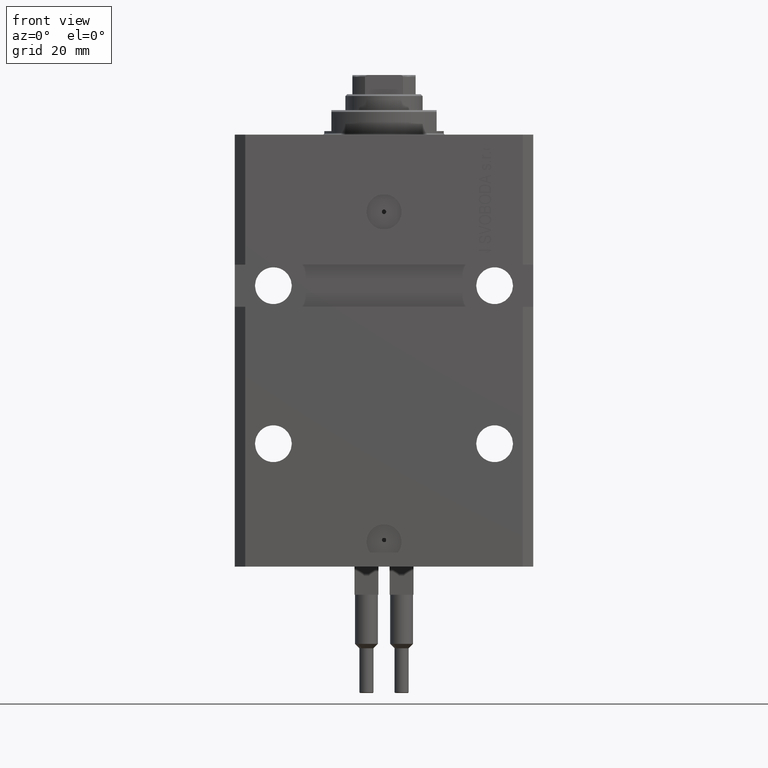
[diagram: clean part render]
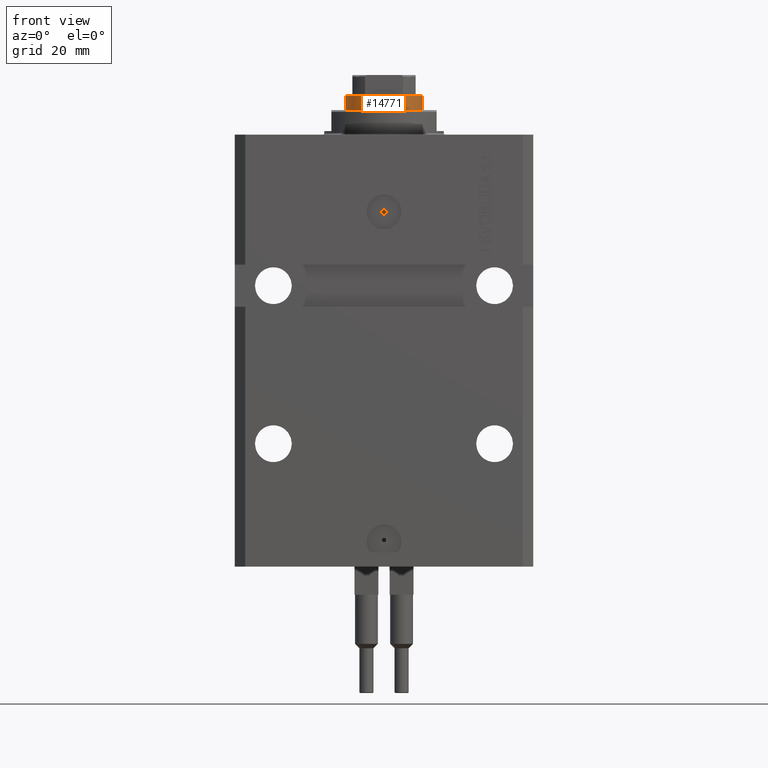
[diagram: same view with one face highlighted and labeled with its STEP entity id]
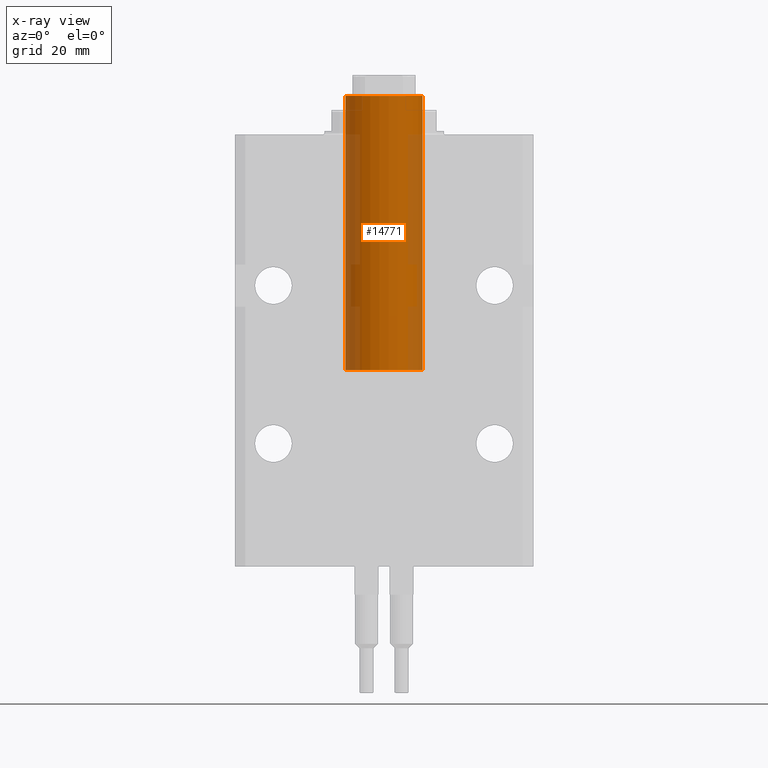
[diagram: x-ray of the same camera — body ghosted, the highlighted face saturated]
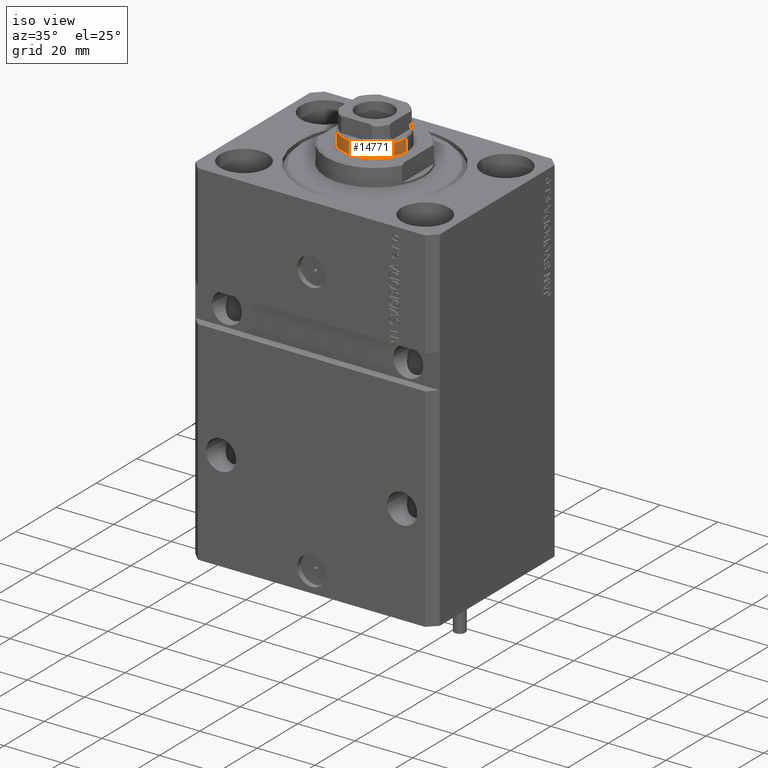
[diagram: same view with one face highlighted and labeled with its STEP entity id]
A machine part, front view. The second image highlights one B-rep face of the part: STEP entity #14771.
The next image is the same camera in x-ray: the body ghosted, the highlighted face saturated — about 29% of this face is hidden behind the body in this view.
A second angle (iso view) of the same face is appended — the face is thin or edge-on in the first view.
In plain terms, the highlighted cylindrical surface (partial cylindrical patch) has radius 11 mm, axis along (-0, -0, -1).
Its self-contained STEP definition (entity closure, byte-faithful):
#461 = CARTESIAN_POINT ( 'NONE',  ( 11.00000000000000000, 1.347111479062088405E-15, 44.60000000000000142 ) ) ;
#631 = DIRECTION ( 'NONE',  ( 1.000000000000000000, 0.000000000000000000, 0.000000000000000000 ) ) ;
#2101 = DIRECTION ( 'NONE',  ( 1.000000000000000000, 0.000000000000000000, 0.000000000000000000 ) ) ;
#2382 = VERTEX_POINT ( 'NONE', #39705 ) ;
#2589 = LINE ( 'NONE', #5812, #5420 ) ;
#2781 = VERTEX_POINT ( 'NONE', #10705 ) ;
#2850 = EDGE_LOOP ( 'NONE', ( #42517, #32663, #41930, #47450 ) ) ;
#5420 = VECTOR ( 'NONE', #6062, 1000.000000000000000 ) ;
#5423 = CIRCLE ( 'NONE', #25164, 11.00000000000000000 ) ;
#5812 = CARTESIAN_POINT ( 'NONE',  ( 11.00000000000000000, 1.347111479062088405E-15, 123.0999999999999943 ) ) ;
#6062 = DIRECTION ( 'NONE',  ( -0.000000000000000000, -0.000000000000000000, -1.000000000000000000 ) ) ;
#9607 = DIRECTION ( 'NONE',  ( -0.000000000000000000, -0.000000000000000000, -1.000000000000000000 ) ) ;
#10136 = EDGE_CURVE ( 'NONE', #2781, #26412, #2589, .T. ) ;
#10267 = DIRECTION ( 'NONE',  ( 0.000000000000000000, 0.000000000000000000, 1.000000000000000000 ) ) ;
#10705 = CARTESIAN_POINT ( 'NONE',  ( 11.00000000000000000, 1.347111479062088405E-15, 122.6000000000000085 ) ) ;
#12641 = CIRCLE ( 'NONE', #43451, 11.00000000000000000 ) ;
#13133 = EDGE_CURVE ( 'NONE', #2781, #2382, #12641, .T. ) ;
#13312 = FACE_OUTER_BOUND ( 'NONE', #2850, .T. ) ;
#14771 = ADVANCED_FACE ( 'NONE', ( #13312 ), #43486, .T. ) ;
#16880 = CARTESIAN_POINT ( 'NONE',  ( -11.00000000000000000, 0.000000000000000000, 44.60000000000000142 ) ) ;
#19446 = DIRECTION ( 'NONE',  ( 0.000000000000000000, 0.000000000000000000, -1.000000000000000000 ) ) ;
#20968 = CARTESIAN_POINT ( 'NONE',  ( 0.000000000000000000, 0.000000000000000000, 123.0999999999999943 ) ) ;
#21564 = LINE ( 'NONE', #47298, #26979 ) ;
#25164 = AXIS2_PLACEMENT_3D ( 'NONE', #35988, #10267, #2101 ) ;
#26048 = EDGE_CURVE ( 'NONE', #2382, #34273, #21564, .T. ) ;
#26412 = VERTEX_POINT ( 'NONE', #461 ) ;
#26979 = VECTOR ( 'NONE', #32225, 1000.000000000000000 ) ;
#30901 = AXIS2_PLACEMENT_3D ( 'NONE', #20968, #9607, #39529 ) ;
#32225 = DIRECTION ( 'NONE',  ( -0.000000000000000000, -0.000000000000000000, -1.000000000000000000 ) ) ;
#32663 = ORIENTED_EDGE ( 'NONE', *, *, #13133, .T. ) ;
#34273 = VERTEX_POINT ( 'NONE', #16880 ) ;
#35988 = CARTESIAN_POINT ( 'NONE',  ( 0.000000000000000000, 0.000000000000000000, 44.60000000000000142 ) ) ;
#37743 = CARTESIAN_POINT ( 'NONE',  ( 0.000000000000000000, 0.000000000000000000, 122.6000000000000085 ) ) ;
#39529 = DIRECTION ( 'NONE',  ( -1.000000000000000000, 0.000000000000000000, 0.000000000000000000 ) ) ;
#39705 = CARTESIAN_POINT ( 'NONE',  ( -11.00000000000000000, 0.000000000000000000, 122.6000000000000085 ) ) ;
#41930 = ORIENTED_EDGE ( 'NONE', *, *, #26048, .T. ) ;
#42517 = ORIENTED_EDGE ( 'NONE', *, *, #10136, .F. ) ;
#43451 = AXIS2_PLACEMENT_3D ( 'NONE', #37743, #19446, #631 ) ;
#43486 = CYLINDRICAL_SURFACE ( 'NONE', #30901, 11.00000000000000000 ) ;
#46043 = EDGE_CURVE ( 'NONE', #34273, #26412, #5423, .T. ) ;
#47298 = CARTESIAN_POINT ( 'NONE',  ( -11.00000000000000000, 0.000000000000000000, 123.0999999999999943 ) ) ;
#47450 = ORIENTED_EDGE ( 'NONE', *, *, #46043, .T. ) ;